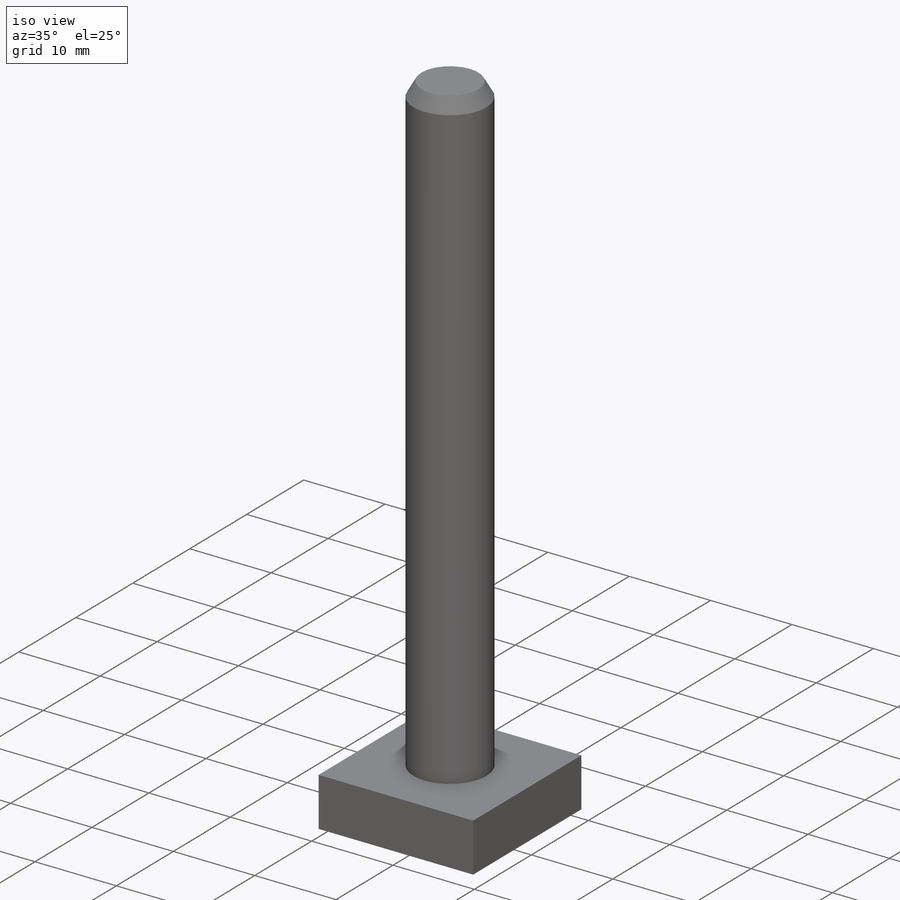
[diagram: iso view]
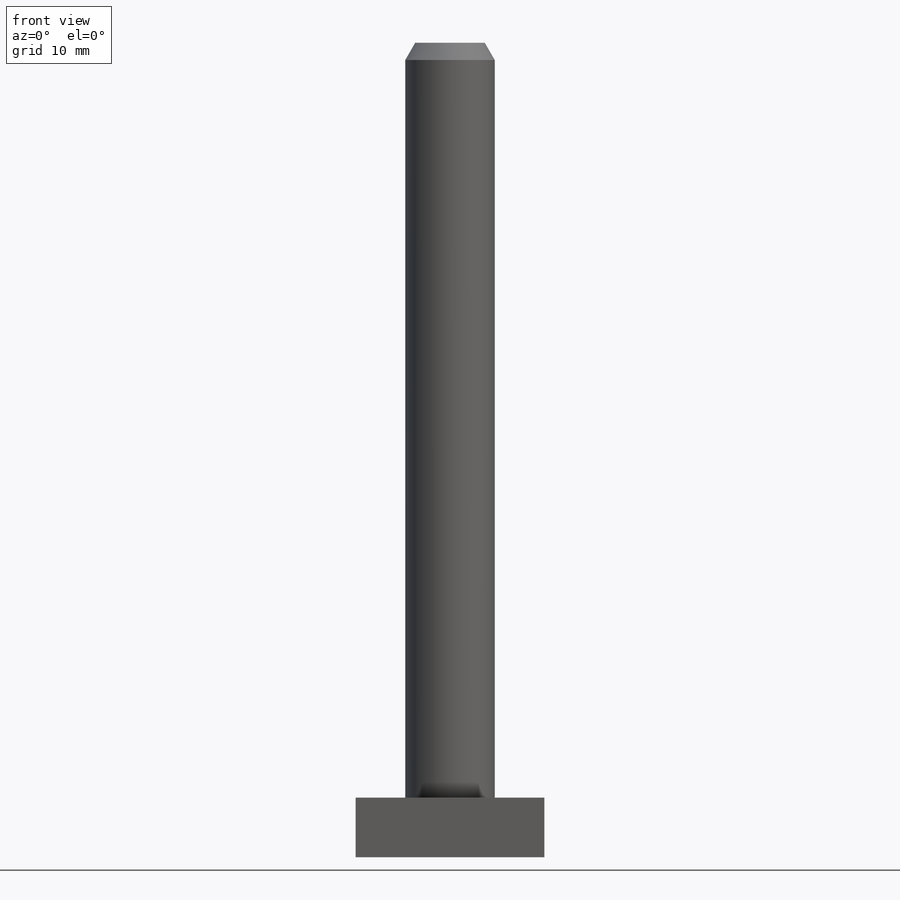
[diagram: front view]
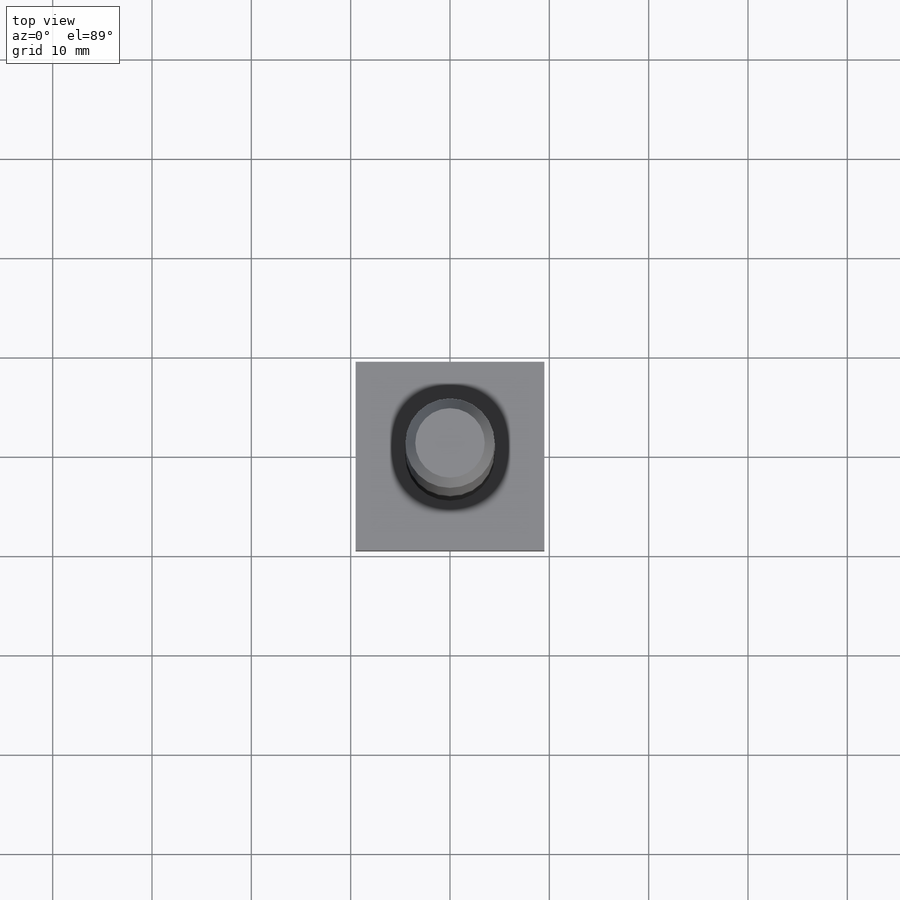
[diagram: top view]
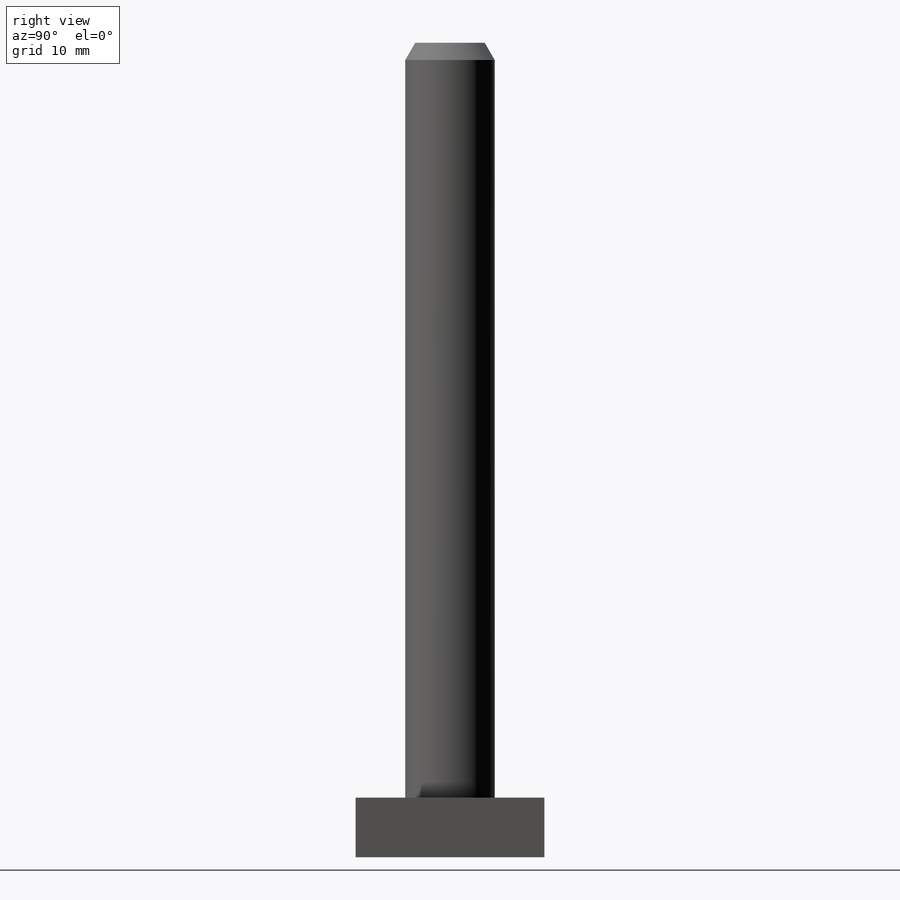
[diagram: right view]
SOLIDWORKS PART (.sldprt)
format: sldprt  version: not decoded by parser v0  size: 122,880 bytes
history: native  units: mm
features: sketch x2, material x1, revolve x1, extrude x1, chamfer x1 (+12 scaffold rows collapsed)
feature tree (18):
  scaffold x12  (default folders/planes/origin — collapsed)
  material  "Material <not specified>"
  sketch  "Sketch1"  dims[D1=76.0mm D2=4.5mm]
  revolve  "Revolve1"  Angle=360deg
  sketch  "Sketch2"  dims[c1.D1=~8.752334mm c1.D2=~10.154837mm c2.D1=19.0mm]
  extrude  "Boss-Extrude1"  Depth=6mm
  chamfer  "Chamfer2"  Distance=1mm Angle=60deg
decode coverage: 5 of 5 modeling features carry decoded parameters
note: ~ marks probable driven/reference dimensions
note: suppression state not decoded; provenance and decode notes live in map.json
